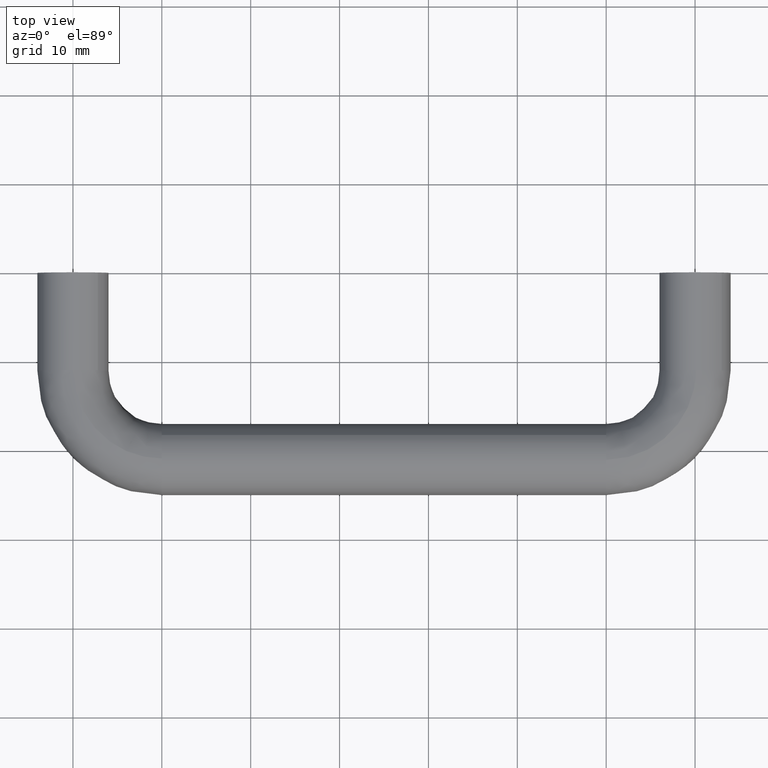
[diagram: clean part render]
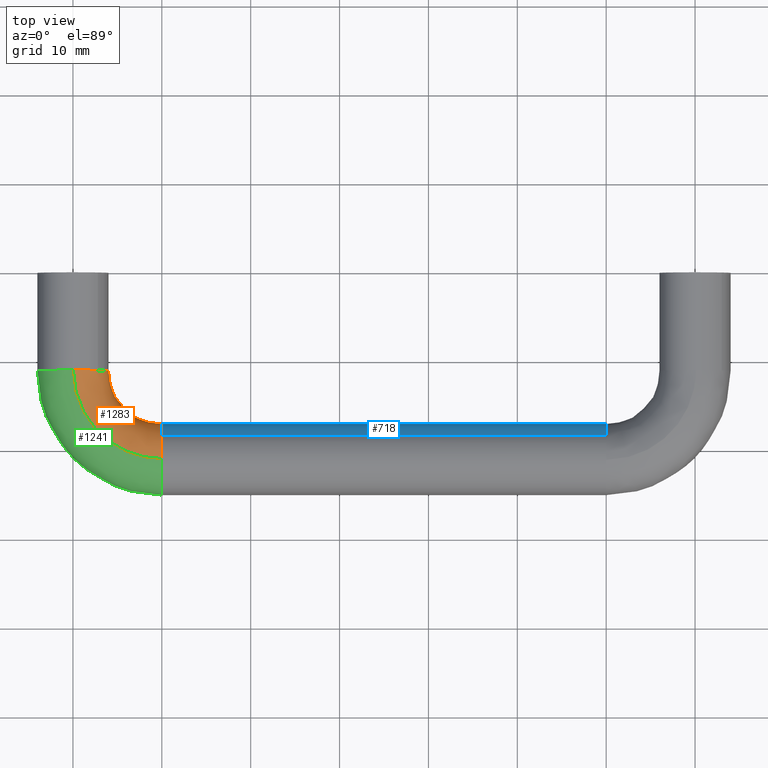
[diagram: same view with three faces highlighted in distinct colors, each labeled with its STEP entity id]
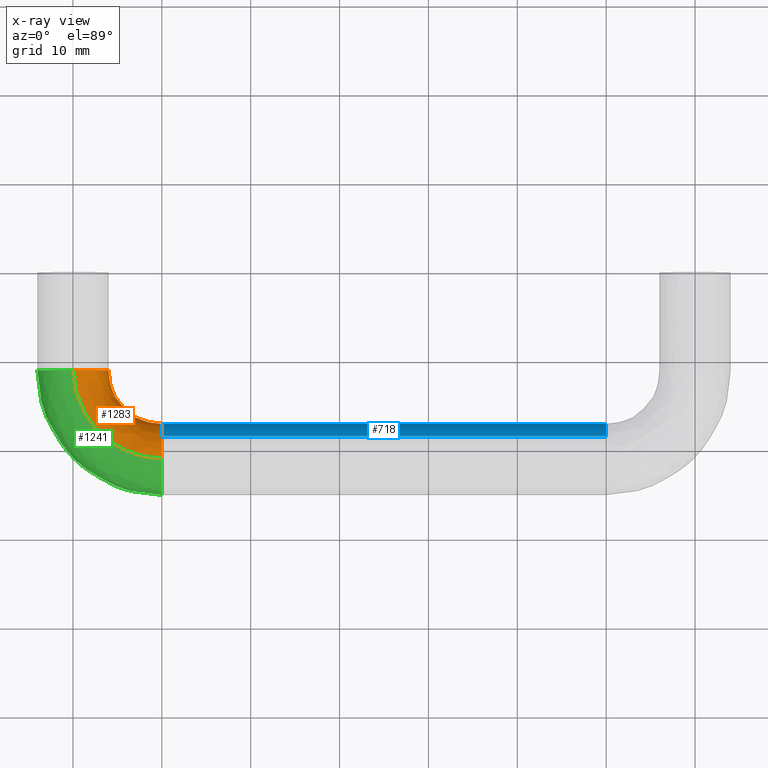
[diagram: x-ray of the same camera — body ghosted, the three highlighted faces saturated]
A machine part, top view with three faces highlighted in distinct colors.
The next image is the same camera in x-ray (body ghosted, the three faces saturated) — at least one of them is partly hidden behind the body in this view.
Their STEP definitions:

[orange] entity #1283 — the highlighted face is a freeform B-spline surface patch.
#659=CARTESIAN_POINT('',(10.0,-18.382643202524559,-3.024804687034064));
#660=VERTEX_POINT('',#659);
#666=CARTESIAN_POINT('',(10.0,-17.0,0.0));
#667=VERTEX_POINT('',#666);
#668=CARTESIAN_POINT('',(10.0,-17.0,0.0));
#669=CARTESIAN_POINT('',(10.0,-17.000000000000007,-1.828406585655699));
#670=CARTESIAN_POINT('',(9.999999999999998,-18.382643202524559,-3.024804687034064));
#678=(BOUNDED_CURVE()B_SPLINE_CURVE(2,(#668,#669,#670),.UNSPECIFIED.,.F.,.U.)B_SPLINE_CURVE_WITH_KNOTS((3,3),(0.0,0.135882211381173),.UNSPECIFIED.)CURVE()GEOMETRIC_REPRESENTATION_ITEM()RATIONAL_B_SPLINE_CURVE((1.0,0.840804086916314,0.854663315533877))REPRESENTATION_ITEM(''));
#679=EDGE_CURVE('',#667,#660,#678,.T.);
#681=CARTESIAN_POINT('',(9.999999999932687,-18.297640207706060,2.949110298504764));
#682=VERTEX_POINT('',#681);
#683=CARTESIAN_POINT('',(9.999999999932687,-18.297640207706056,2.949110298504764));
#684=CARTESIAN_POINT('',(9.999999999999998,-17.0,1.760042963877126));
#685=CARTESIAN_POINT('',(10.0,-17.0,0.0));
#693=(BOUNDED_CURVE()B_SPLINE_CURVE(2,(#683,#684,#685),.UNSPECIFIED.,.F.,.U.)B_SPLINE_CURVE_WITH_KNOTS((3,3),(0.868415155945529,1.0),.UNSPECIFIED.)CURVE()GEOMETRIC_REPRESENTATION_ITEM()RATIONAL_B_SPLINE_CURVE((0.853959787397031,0.845838765911279,1.0))REPRESENTATION_ITEM(''));
#694=EDGE_CURVE('',#682,#667,#693,.T.);
#804=CARTESIAN_POINT('',(9.999999999795115,-20.949735840187731,3.999684176811759));
#805=VERTEX_POINT('',#804);
#806=CARTESIAN_POINT('',(9.999999999795115,-20.949735840187728,3.999684176811759));
#807=CARTESIAN_POINT('',(9.999999999874300,-19.423205594652522,3.980500221965913));
#808=CARTESIAN_POINT('',(9.999999999932687,-18.297640207706056,2.949110298504764));
#816=(BOUNDED_CURVE()B_SPLINE_CURVE(2,(#806,#807,#808),.UNSPECIFIED.,.F.,.U.)B_SPLINE_CURVE_WITH_KNOTS((3,3),(0.752215704102795,0.868415155945529),.UNSPECIFIED.)CURVE()GEOMETRIC_REPRESENTATION_ITEM()RATIONAL_B_SPLINE_CURVE((0.994854295587569,0.861131268670793,0.853959787397031))REPRESENTATION_ITEM(''));
#817=EDGE_CURVE('',#805,#682,#816,.T.);
#836=CARTESIAN_POINT('',(9.999999999694458,-21.278933007478312,-3.990262695279485));
#837=VERTEX_POINT('',#836);
#851=CARTESIAN_POINT('',(9.999999999999998,-18.382643202524559,-3.024804687034064));
#852=CARTESIAN_POINT('',(10.000000000000002,-19.509648644149969,-4.000000000000001));
#853=CARTESIAN_POINT('',(10.0,-21.0,-4.0));
#854=CARTESIAN_POINT('',(9.999999999999998,-21.139636464679697,-4.000000000000000));
#855=CARTESIAN_POINT('',(9.999999999694458,-21.278933007478305,-3.990262695279485));
#863=(BOUNDED_CURVE()B_SPLINE_CURVE(2,(#851,#852,#853,#854,#855),.UNSPECIFIED.,.F.,.U.)B_SPLINE_CURVE_WITH_KNOTS((3,2,3),(0.135882211381173,0.250000000000000,0.262166313566285),.UNSPECIFIED.)CURVE()GEOMETRIC_REPRESENTATION_ITEM()RATIONAL_B_SPLINE_CURVE((0.854663315533877,0.866302694270234,1.0,0.985746277033909,0.972879876172557))REPRESENTATION_ITEM(''));
#864=EDGE_CURVE('',#660,#837,#863,.T.);
#892=CARTESIAN_POINT('',(0.050264159629947,-11.000000000112950,3.999684176814051));
#893=VERTEX_POINT('',#892);
#894=CARTESIAN_POINT('',(2.803636906128493,-11.000000000034211,2.853001945059499));
#895=VERTEX_POINT('',#894);
#896=CARTESIAN_POINT('',(0.050264159629947,-11.000000000112946,3.999684176814051));
#897=CARTESIAN_POINT('',(1.657315813301567,-11.000000000066990,3.979488306980843));
#898=CARTESIAN_POINT('',(2.803636906128493,-11.000000000034206,2.853001945059498));
#906=(BOUNDED_CURVE()B_SPLINE_CURVE(2,(#896,#897,#898),.UNSPECIFIED.,.F.,.U.)B_SPLINE_CURVE_WITH_KNOTS((3,3),(0.752215704086761,0.873683226430604),.UNSPECIFIED.)CURVE()GEOMETRIC_REPRESENTATION_ITEM()RATIONAL_B_SPLINE_CURVE((0.994854295624473,0.855068741523887,0.853569641645894))REPRESENTATION_ITEM(''));
#907=EDGE_CURVE('',#893,#895,#906,.T.);
#950=CARTESIAN_POINT('',(2.853001941412555,-11.000000000000011,-2.803636909854083));
#951=VERTEX_POINT('',#950);
#957=CARTESIAN_POINT('',(-0.278933007377839,-11.000000000287470,-3.990262695286508));
#958=VERTEX_POINT('',#957);
#959=CARTESIAN_POINT('',(2.853001941412555,-11.000000000000005,-2.803636909854082));
#960=CARTESIAN_POINT('',(1.677339449942282,-11.0,-4.000000000000001));
#961=CARTESIAN_POINT('',(1.347067E-015,-11.0,-4.0));
#962=CARTESIAN_POINT('',(-0.139636464578859,-11.000000000000007,-4.000000000000000));
#963=CARTESIAN_POINT('',(-0.278933007377839,-11.000000000287473,-3.990262695286508));
#971=(BOUNDED_CURVE()B_SPLINE_CURVE(2,(#959,#960,#961,#962,#963),.UNSPECIFIED.,.F.,.U.)B_SPLINE_CURVE_WITH_KNOTS((3,2,3),(0.123683226823139,0.250000000000000,0.262166313557624),.UNSPECIFIED.)CURVE()GEOMETRIC_REPRESENTATION_ITEM()RATIONAL_B_SPLINE_CURVE((0.853569641636205,0.852010694856402,1.0,0.985746277044055,0.972879876190874))REPRESENTATION_ITEM(''));
#972=EDGE_CURVE('',#951,#958,#971,.T.);
#1021=CARTESIAN_POINT('',(4.000000000000002,-11.0,0.0));
#1022=VERTEX_POINT('',#1021);
#1023=CARTESIAN_POINT('',(2.803636906128493,-11.000000000034206,2.853001945059498));
#1024=CARTESIAN_POINT('',(4.000000000000002,-11.0,1.677339456060068));
#1025=CARTESIAN_POINT('',(4.000000000000002,-11.0,0.0));
#1033=(BOUNDED_CURVE()B_SPLINE_CURVE(2,(#1023,#1024,#1025),.UNSPECIFIED.,.F.,.U.)B_SPLINE_CURVE_WITH_KNOTS((3,3),(0.873683226430603,1.0),.UNSPECIFIED.)CURVE()GEOMETRIC_REPRESENTATION_ITEM()RATIONAL_B_SPLINE_CURVE((0.853569641645894,0.852010694396518,1.0))REPRESENTATION_ITEM(''));
#1034=EDGE_CURVE('',#895,#1022,#1033,.T.);
#1036=CARTESIAN_POINT('',(4.000000000000002,-11.0,0.0));
#1037=CARTESIAN_POINT('',(4.000000000000002,-11.0,-1.636442964551879));
#1038=CARTESIAN_POINT('',(2.853001941412555,-11.000000000000005,-2.803636909854082));
#1046=(BOUNDED_CURVE()B_SPLINE_CURVE(2,(#1036,#1037,#1038),.UNSPECIFIED.,.F.,.U.)B_SPLINE_CURVE_WITH_KNOTS((3,3),(0.0,0.123683226823139),.UNSPECIFIED.)CURVE()GEOMETRIC_REPRESENTATION_ITEM()RATIONAL_B_SPLINE_CURVE((1.0,0.855096086330145,0.853569641636205))REPRESENTATION_ITEM(''));
#1047=EDGE_CURVE('',#1022,#951,#1046,.T.);
#1211=CARTESIAN_POINT('',(0.050264159629947,-11.000000000112948,3.999684176814050));
#1212=CARTESIAN_POINT('',(0.050264159759308,-20.949735840056825,3.999684176815263));
#1213=CARTESIAN_POINT('',(9.999999999795115,-20.949735840187731,3.999684176811759));
#1221=(BOUNDED_CURVE()B_SPLINE_CURVE(2,(#1211,#1212,#1213),.UNSPECIFIED.,.F.,.U.)B_SPLINE_CURVE_WITH_KNOTS((3,3),(-1.747842683645523,-0.278273130988899),.UNSPECIFIED.)CURVE()GEOMETRIC_REPRESENTATION_ITEM()RATIONAL_B_SPLINE_CURVE((0.893710737955530,0.628668022901307,0.884455039440412))REPRESENTATION_ITEM(''));
#1222=EDGE_CURVE('',#893,#805,#1221,.T.);
#1226=CARTESIAN_POINT('',(-0.278933007377839,-11.000000000287468,-3.990262695286508));
#1227=CARTESIAN_POINT('',(-0.278933005726834,-21.278933005690686,-3.990262695361727));
#1228=CARTESIAN_POINT('',(9.999999999694456,-21.278933007478312,-3.990262695279485));
#1236=(BOUNDED_CURVE()B_SPLINE_CURVE(2,(#1226,#1227,#1228),.UNSPECIFIED.,.F.,.U.)B_SPLINE_CURVE_WITH_KNOTS((3,3),(-1.747842683610813,-0.278273131007783),.UNSPECIFIED.)CURVE()GEOMETRIC_REPRESENTATION_ITEM()RATIONAL_B_SPLINE_CURVE((0.873607430572186,0.614526639169666,0.864559931589060))REPRESENTATION_ITEM(''));
#1237=EDGE_CURVE('',#958,#837,#1236,.T.);
#1242=CARTESIAN_POINT('',(0.074091109206240,-10.311831425647240,3.999684176815264));
#1243=CARTESIAN_POINT('',(-0.717206478888238,-21.725238049624274,3.999684176815263));
#1244=CARTESIAN_POINT('',(10.695604159212644,-20.925390579153625,3.999684176815263));
#1245=CARTESIAN_POINT('',(4.064197114790003,-10.588467609959363,3.949420017281852));
#1246=CARTESIAN_POINT('',(3.590992438205943,-17.413810529589981,3.949420017281852));
#1247=CARTESIAN_POINT('',(10.415978951715756,-16.935492929138181,3.949420017281852));
#1248=CARTESIAN_POINT('',(4.014053324442141,-10.584991114144623,-0.050264159533410));
#1249=CARTESIAN_POINT('',(3.536851164020912,-17.467992377731864,-0.050264159533410));
#1250=CARTESIAN_POINT('',(10.419493010680878,-16.985634101074929,-0.050264159533410));
#1251=CARTESIAN_POINT('',(3.963909534094281,-10.581514618329885,-4.049948336348672));
#1252=CARTESIAN_POINT('',(3.482709889835880,-17.522174225873766,-4.049948336348672));
#1253=CARTESIAN_POINT('',(10.423007069645998,-17.035775273011655,-4.049948336348674));
#1254=CARTESIAN_POINT('',(-0.026196471489482,-10.304878434017763,-3.999684176815264));
#1255=CARTESIAN_POINT('',(-0.825489027258300,-21.833601745908055,-3.999684176815263));
#1256=CARTESIAN_POINT('',(10.702632277142888,-21.025672923027106,-3.999684176815263));
#1257=CARTESIAN_POINT('',(-0.140391480907827,-10.296961232913635,-3.998245639552522));
#1258=CARTESIAN_POINT('',(-0.948787710357247,-21.956992830146884,-3.998245639552521));
#1259=CARTESIAN_POINT('',(10.710635022723839,-21.139861969404350,-3.998245639552521));
#1260=CARTESIAN_POINT('',(-0.254317497986321,-10.289062681192366,-3.990262710755871));
#1261=CARTESIAN_POINT('',(-1.071795956935051,-22.080093260208830,-3.990262710755870));
#1262=CARTESIAN_POINT('',(10.718618917417436,-21.253782037488012,-3.990262710755870));
#1270=(BOUNDED_SURFACE()B_SPLINE_SURFACE(2,2,((#1242,#1245,#1248,#1251,#1254,#1257,#1260),(#1243,#1246,#1249,#1252,#1255,#1258,#1261),(#1244,#1247,#1250,#1253,#1256,#1259,#1262)),.UNSPECIFIED.,.F.,.F.,.U.)B_SPLINE_SURFACE_WITH_KNOTS((3,3),(3,2,2,3),(0.0,18.731910853959210),(0.0,6.627416997969521,13.254833995939039,13.519930423041931),.UNSPECIFIED.)GEOMETRIC_REPRESENTATION_ITEM()RATIONAL_B_SPLINE_SURFACE(((0.921487970695580,0.651590392860676,0.921487970695580,0.651590392860676,0.921487970695580,0.910692077877960,0.900759855662087),(0.601353110281207,0.425220862167464,0.601353110281207,0.425220862167464,0.601353110281207,0.594307827075570,0.587826165988871),(0.911307631818076,0.644391806205615,0.911307631818076,0.644391806205615,0.911307631818076,0.900631008975608,0.890808515145976)))REPRESENTATION_ITEM('')SURFACE());
#1271=ORIENTED_EDGE('',*,*,#679,.T.);
#1272=ORIENTED_EDGE('',*,*,#864,.T.);
#1273=ORIENTED_EDGE('',*,*,#1237,.F.);
#1274=ORIENTED_EDGE('',*,*,#972,.F.);
#1275=ORIENTED_EDGE('',*,*,#1047,.F.);
#1276=ORIENTED_EDGE('',*,*,#1034,.F.);
#1277=ORIENTED_EDGE('',*,*,#907,.F.);
#1278=ORIENTED_EDGE('',*,*,#1222,.T.);
#1279=ORIENTED_EDGE('',*,*,#817,.T.);
#1280=ORIENTED_EDGE('',*,*,#694,.T.);
#1281=EDGE_LOOP('',(#1271,#1272,#1273,#1274,#1275,#1276,#1277,#1278,#1279,#1280));
#1282=FACE_OUTER_BOUND('',#1281,.T.);
#1283=ADVANCED_FACE('',(#1282),#1270,.T.);

[blue] entity #718 — the highlighted face is a freeform B-spline surface patch.
#624=CARTESIAN_POINT('',(8.749999999681151,-18.382641371989180,-3.024803103075854));
#625=CARTESIAN_POINT('',(8.749999999681151,-18.207427144385683,-2.873190434501844));
#626=CARTESIAN_POINT('',(8.749999999681151,-18.050890652759509,-2.702360830462640));
#627=CARTESIAN_POINT('',(8.749999999681151,-15.348529822296868,0.246748516777855));
#628=CARTESIAN_POINT('',(8.749999999681151,-18.297639169537359,2.949109347240495));
#629=CARTESIAN_POINT('',(61.281250000240291,-18.382641371989170,-3.024803103075854));
#630=CARTESIAN_POINT('',(61.281250000240298,-18.207427144385672,-2.873190434501844));
#631=CARTESIAN_POINT('',(61.281250000240277,-18.050890652759499,-2.702360830462640));
#632=CARTESIAN_POINT('',(61.281250000240298,-15.348529822296852,0.246748516777855));
#633=CARTESIAN_POINT('',(61.281250000240277,-18.297639169537351,2.949109347240495));
#641=(BOUNDED_SURFACE()B_SPLINE_SURFACE(2,1,((#624,#629),(#625,#630),(#626,#631),(#627,#632),(#628,#633)),.UNSPECIFIED.,.F.,.F.,.U.)B_SPLINE_SURFACE_WITH_KNOTS((3,2,3),(2,2),(0.0,0.530193359837562,7.157610357807082),(0.0,52.531250000559147),.UNSPECIFIED.)GEOMETRIC_REPRESENTATION_ITEM()RATIONAL_B_SPLINE_SURFACE(((0.956886118190660,0.956886118190660),(0.976568542494924,0.976568542494924),(1.0,1.0),(0.707106781186548,0.707106781186548),(1.0,1.0)))REPRESENTATION_ITEM('')SURFACE());
#642=CARTESIAN_POINT('',(60.0,-17.0,0.0));
#643=VERTEX_POINT('',#642);
#644=CARTESIAN_POINT('',(59.999993848015109,-18.382643313175549,-3.024804782780067));
#645=VERTEX_POINT('',#644);
#646=CARTESIAN_POINT('',(60.0,-17.0,0.0));
#647=CARTESIAN_POINT('',(59.999997427847539,-17.0,-1.828406674104777));
#648=CARTESIAN_POINT('',(59.999993848015109,-18.382643313175549,-3.024804782780068));
#656=(BOUNDED_CURVE()B_SPLINE_CURVE(2,(#646,#647,#648),.UNSPECIFIED.,.F.,.U.)B_SPLINE_CURVE_WITH_KNOTS((3,3),(0.0,0.135882216908022),.UNSPECIFIED.)CURVE()GEOMETRIC_REPRESENTATION_ITEM()RATIONAL_B_SPLINE_CURVE((1.0,0.840804080441206,0.854663316661293))REPRESENTATION_ITEM(''));
#657=EDGE_CURVE('',#643,#645,#656,.T.);
#658=ORIENTED_EDGE('',*,*,#657,.T.);
#659=CARTESIAN_POINT('',(10.0,-18.382643202524559,-3.024804687034064));
#660=VERTEX_POINT('',#659);
#661=CARTESIAN_POINT('',(10.0,-18.382643202524559,-3.024804687034064));
#662=CARTESIAN_POINT('',(59.999993848015109,-18.382643313175549,-3.024804782780067));
#663=QUASI_UNIFORM_CURVE('',1,(#661,#662),.UNSPECIFIED.,.F.,.U.);
#664=EDGE_CURVE('',#660,#645,#663,.T.);
#665=ORIENTED_EDGE('',*,*,#664,.F.);
#666=CARTESIAN_POINT('',(10.0,-17.0,0.0));
#667=VERTEX_POINT('',#666);
#668=CARTESIAN_POINT('',(10.0,-17.0,0.0));
#669=CARTESIAN_POINT('',(10.0,-17.000000000000007,-1.828406585655699));
#670=CARTESIAN_POINT('',(9.999999999999998,-18.382643202524559,-3.024804687034064));
#678=(BOUNDED_CURVE()B_SPLINE_CURVE(2,(#668,#669,#670),.UNSPECIFIED.,.F.,.U.)B_SPLINE_CURVE_WITH_KNOTS((3,3),(0.0,0.135882211381173),.UNSPECIFIED.)CURVE()GEOMETRIC_REPRESENTATION_ITEM()RATIONAL_B_SPLINE_CURVE((1.0,0.840804086916314,0.854663315533877))REPRESENTATION_ITEM(''));
#679=EDGE_CURVE('',#667,#660,#678,.T.);
#680=ORIENTED_EDGE('',*,*,#679,.F.);
#681=CARTESIAN_POINT('',(9.999999999932687,-18.297640207706060,2.949110298504764));
#682=VERTEX_POINT('',#681);
#683=CARTESIAN_POINT('',(9.999999999932687,-18.297640207706056,2.949110298504764));
#684=CARTESIAN_POINT('',(9.999999999999998,-17.0,1.760042963877126));
#685=CARTESIAN_POINT('',(10.0,-17.0,0.0));
#693=(BOUNDED_CURVE()B_SPLINE_CURVE(2,(#683,#684,#685),.UNSPECIFIED.,.F.,.U.)B_SPLINE_CURVE_WITH_KNOTS((3,3),(0.868415155945529,1.0),.UNSPECIFIED.)CURVE()GEOMETRIC_REPRESENTATION_ITEM()RATIONAL_B_SPLINE_CURVE((0.853959787397031,0.845838765911279,1.0))REPRESENTATION_ITEM(''));
#694=EDGE_CURVE('',#682,#667,#693,.T.);
#695=ORIENTED_EDGE('',*,*,#694,.F.);
#696=CARTESIAN_POINT('',(60.000000000000007,-18.297639657657740,2.949109794520274));
#697=VERTEX_POINT('',#696);
#698=CARTESIAN_POINT('',(9.999999999932687,-18.297640207706060,2.949110298504764));
#699=CARTESIAN_POINT('',(60.000000000000007,-18.297639657657740,2.949109794520274));
#700=QUASI_UNIFORM_CURVE('',1,(#698,#699),.UNSPECIFIED.,.F.,.U.);
#701=EDGE_CURVE('',#682,#697,#700,.T.);
#702=ORIENTED_EDGE('',*,*,#701,.T.);
#703=CARTESIAN_POINT('',(60.000000000000007,-18.297639657657740,2.949109794520274));
#704=CARTESIAN_POINT('',(59.999999999999993,-17.000000000000004,1.760042913805880));
#705=CARTESIAN_POINT('',(60.0,-17.0,0.0));
#713=(BOUNDED_CURVE()B_SPLINE_CURVE(2,(#703,#704,#705),.UNSPECIFIED.,.F.,.U.)B_SPLINE_CURVE_WITH_KNOTS((3,3),(0.868415159111876,1.0),.UNSPECIFIED.)CURVE()GEOMETRIC_REPRESENTATION_ITEM()RATIONAL_B_SPLINE_CURVE((0.853959787006197,0.845838769620886,1.0))REPRESENTATION_ITEM(''));
#714=EDGE_CURVE('',#697,#643,#713,.T.);
#715=ORIENTED_EDGE('',*,*,#714,.T.);
#716=EDGE_LOOP('',(#658,#665,#680,#695,#702,#715));
#717=FACE_OUTER_BOUND('',#716,.T.);
#718=ADVANCED_FACE('',(#717),#641,.T.);

[green] entity #1241 — the highlighted face is a freeform B-spline surface patch.
#804=CARTESIAN_POINT('',(9.999999999795115,-20.949735840187731,3.999684176811759));
#805=VERTEX_POINT('',#804);
#819=CARTESIAN_POINT('',(10.0,-25.0,0.0));
#820=VERTEX_POINT('',#819);
#821=CARTESIAN_POINT('',(10.0,-25.0,0.0));
#822=CARTESIAN_POINT('',(10.000000000000002,-25.0,4.000000000000000));
#823=CARTESIAN_POINT('',(10.0,-21.0,4.0));
#824=CARTESIAN_POINT('',(10.0,-20.974866927753531,4.0));
#825=CARTESIAN_POINT('',(9.999999999795115,-20.949735840187731,3.999684176811760));
#833=(BOUNDED_CURVE()B_SPLINE_CURVE(2,(#821,#822,#823,#824,#825),.UNSPECIFIED.,.F.,.U.)B_SPLINE_CURVE_WITH_KNOTS((3,2,3),(0.500000000000000,0.750000000000000,0.752215704102796),.UNSPECIFIED.)CURVE()GEOMETRIC_REPRESENTATION_ITEM()RATIONAL_B_SPLINE_CURVE((1.0,0.707106781186548,1.0,0.997404141173575,0.994854295587567))REPRESENTATION_ITEM(''));
#834=EDGE_CURVE('',#820,#805,#833,.T.);
#836=CARTESIAN_POINT('',(9.999999999694458,-21.278933007478312,-3.990262695279485));
#837=VERTEX_POINT('',#836);
#838=CARTESIAN_POINT('',(9.999999999694458,-21.278933007478305,-3.990262695279485));
#839=CARTESIAN_POINT('',(10.000000000000002,-24.999999999999993,-3.730147386861420));
#840=CARTESIAN_POINT('',(10.0,-25.0,0.0));
#848=(BOUNDED_CURVE()B_SPLINE_CURVE(2,(#838,#839,#840),.UNSPECIFIED.,.F.,.U.)B_SPLINE_CURVE_WITH_KNOTS((3,3),(0.262166313566285,0.500000000000000),.UNSPECIFIED.)CURVE()GEOMETRIC_REPRESENTATION_ITEM()RATIONAL_B_SPLINE_CURVE((0.972879876172557,0.721360504152639,1.0))REPRESENTATION_ITEM(''));
#849=EDGE_CURVE('',#837,#820,#848,.T.);
#892=CARTESIAN_POINT('',(0.050264159629947,-11.000000000112950,3.999684176814051));
#893=VERTEX_POINT('',#892);
#957=CARTESIAN_POINT('',(-0.278933007377839,-11.000000000287470,-3.990262695286508));
#958=VERTEX_POINT('',#957);
#974=CARTESIAN_POINT('',(-3.999999999999998,-11.0,0.0));
#975=VERTEX_POINT('',#974);
#976=CARTESIAN_POINT('',(-0.278933007377839,-11.000000000287473,-3.990262695286508));
#977=CARTESIAN_POINT('',(-3.999999999999999,-11.0,-3.730147387049716));
#978=CARTESIAN_POINT('',(-3.999999999999998,-11.0,0.0));
#986=(BOUNDED_CURVE()B_SPLINE_CURVE(2,(#976,#977,#978),.UNSPECIFIED.,.F.,.U.)B_SPLINE_CURVE_WITH_KNOTS((3,3),(0.262166313557624,0.500000000000000),.UNSPECIFIED.)CURVE()GEOMETRIC_REPRESENTATION_ITEM()RATIONAL_B_SPLINE_CURVE((0.972879876190874,0.721360504142493,1.0))REPRESENTATION_ITEM(''));
#987=EDGE_CURVE('',#958,#975,#986,.T.);
#989=CARTESIAN_POINT('',(-3.999999999999998,-11.0,0.0));
#990=CARTESIAN_POINT('',(-3.999999999999998,-11.0,4.000000000000000));
#991=CARTESIAN_POINT('',(1.347067E-015,-11.0,4.0));
#992=CARTESIAN_POINT('',(0.025133072064095,-10.999999999999998,4.000000000000001));
#993=CARTESIAN_POINT('',(0.050264159629947,-11.000000000112948,3.999684176814050));
#1001=(BOUNDED_CURVE()B_SPLINE_CURVE(2,(#989,#990,#991,#992,#993),.UNSPECIFIED.,.F.,.U.)B_SPLINE_CURVE_WITH_KNOTS((3,2,3),(0.500000000000000,0.750000000000000,0.752215704086760),.UNSPECIFIED.)CURVE()GEOMETRIC_REPRESENTATION_ITEM()RATIONAL_B_SPLINE_CURVE((1.0,0.707106781186548,1.0,0.997404141192363,0.994854295624476))REPRESENTATION_ITEM(''));
#1002=EDGE_CURVE('',#975,#893,#1001,.T.);
#1180=CARTESIAN_POINT('',(-0.196833926622995,-10.293048047952128,-3.994290654793637));
#1181=CARTESIAN_POINT('',(-1.009729771337067,-22.017980561654252,-3.994290654793637));
#1182=CARTESIAN_POINT('',(10.714590489213363,-21.196301467804883,-3.994290654793637));
#1183=CARTESIAN_POINT('',(-0.225496521028500,-10.291060854945796,-3.992282231804178));
#1184=CARTESIAN_POINT('',(-1.040677359698405,-22.048951342416082,-3.992282231804176));
#1185=CARTESIAN_POINT('',(10.716599153618976,-21.224962565505496,-3.992282231804176));
#1186=CARTESIAN_POINT('',(-4.013512147630050,-10.028435704738923,-3.726851351358788));
#1187=CARTESIAN_POINT('',(-5.130675168684697,-26.142014232473432,-3.726851351358789));
#1188=CARTESIAN_POINT('',(10.982061939346378,-25.012780389304908,-3.726851351358789));
#1189=CARTESIAN_POINT('',(-3.966158686725386,-10.031718745520378,0.050264159533410));
#1190=CARTESIAN_POINT('',(-5.079546670167449,-26.090847417800468,0.050264159533410));
#1191=CARTESIAN_POINT('',(10.978743425674653,-24.965429401105801,0.050264159533410));
#1192=CARTESIAN_POINT('',(-3.916014896377526,-10.035195241335117,4.049948336348672));
#1193=CARTESIAN_POINT('',(-5.025405395982419,-26.036665569658567,4.049948336348672));
#1194=CARTESIAN_POINT('',(10.975229366709534,-24.915288229169050,4.049948336348674));
#1195=CARTESIAN_POINT('',(0.102405941251678,-10.313794508103076,3.999327489240271));
#1196=CARTESIAN_POINT('',(-0.686634376647056,-21.694643036375250,3.999327489240271));
#1197=CARTESIAN_POINT('',(10.693619865869344,-20.897077225653589,3.999327489240271));
#1198=CARTESIAN_POINT('',(0.130554805749146,-10.315746083940008,3.998972892391515));
#1199=CARTESIAN_POINT('',(-0.656241472955846,-21.664227355969189,3.998972892391514));
#1200=CARTESIAN_POINT('',(10.691647203472685,-20.868929831035029,3.998972892391514));
#1208=(BOUNDED_SURFACE()B_SPLINE_SURFACE(2,2,((#1180,#1183,#1186,#1189,#1192,#1195,#1198),(#1181,#1184,#1187,#1190,#1193,#1196,#1199),(#1182,#1185,#1188,#1191,#1194,#1197,#1200)),.UNSPECIFIED.,.F.,.F.,.U.)B_SPLINE_SURFACE_WITH_KNOTS((3,3),(3,1,2,1,3),(0.0,25.512457512980440),(0.0,0.066516644631283,6.428836962682019,13.056253960651540,13.122960326664851),.UNSPECIFIED.)GEOMETRIC_REPRESENTATION_ITEM()RATIONAL_B_SPLINE_SURFACE(((0.905744121477673,0.903251979097766,0.662386295974072,0.921487970695580,0.651590392860676,0.924204547397888,0.926921124100196),(0.591078844098611,0.589452498862342,0.432266152092013,0.601353110281207,0.425220862167464,0.603125918935472,0.604898727589737),(0.895737716200358,0.893273106305699,0.655068439230114,0.911307631818076,0.644391806205615,0.913994196548122,0.916680761278168)))REPRESENTATION_ITEM('')SURFACE());
#1209=ORIENTED_EDGE('',*,*,#849,.T.);
#1210=ORIENTED_EDGE('',*,*,#834,.T.);
#1211=CARTESIAN_POINT('',(0.050264159629947,-11.000000000112948,3.999684176814050));
#1212=CARTESIAN_POINT('',(0.050264159759308,-20.949735840056825,3.999684176815263));
#1213=CARTESIAN_POINT('',(9.999999999795115,-20.949735840187731,3.999684176811759));
#1221=(BOUNDED_CURVE()B_SPLINE_CURVE(2,(#1211,#1212,#1213),.UNSPECIFIED.,.F.,.U.)B_SPLINE_CURVE_WITH_KNOTS((3,3),(-1.747842683645523,-0.278273130988899),.UNSPECIFIED.)CURVE()GEOMETRIC_REPRESENTATION_ITEM()RATIONAL_B_SPLINE_CURVE((0.893710737955530,0.628668022901307,0.884455039440412))REPRESENTATION_ITEM(''));
#1222=EDGE_CURVE('',#893,#805,#1221,.T.);
#1223=ORIENTED_EDGE('',*,*,#1222,.F.);
#1224=ORIENTED_EDGE('',*,*,#1002,.F.);
#1225=ORIENTED_EDGE('',*,*,#987,.F.);
#1226=CARTESIAN_POINT('',(-0.278933007377839,-11.000000000287468,-3.990262695286508));
#1227=CARTESIAN_POINT('',(-0.278933005726834,-21.278933005690686,-3.990262695361727));
#1228=CARTESIAN_POINT('',(9.999999999694456,-21.278933007478312,-3.990262695279485));
#1236=(BOUNDED_CURVE()B_SPLINE_CURVE(2,(#1226,#1227,#1228),.UNSPECIFIED.,.F.,.U.)B_SPLINE_CURVE_WITH_KNOTS((3,3),(-1.747842683610813,-0.278273131007783),.UNSPECIFIED.)CURVE()GEOMETRIC_REPRESENTATION_ITEM()RATIONAL_B_SPLINE_CURVE((0.873607430572186,0.614526639169666,0.864559931589060))REPRESENTATION_ITEM(''));
#1237=EDGE_CURVE('',#958,#837,#1236,.T.);
#1238=ORIENTED_EDGE('',*,*,#1237,.T.);
#1239=EDGE_LOOP('',(#1209,#1210,#1223,#1224,#1225,#1238));
#1240=FACE_OUTER_BOUND('',#1239,.T.);
#1241=ADVANCED_FACE('',(#1240),#1208,.T.);